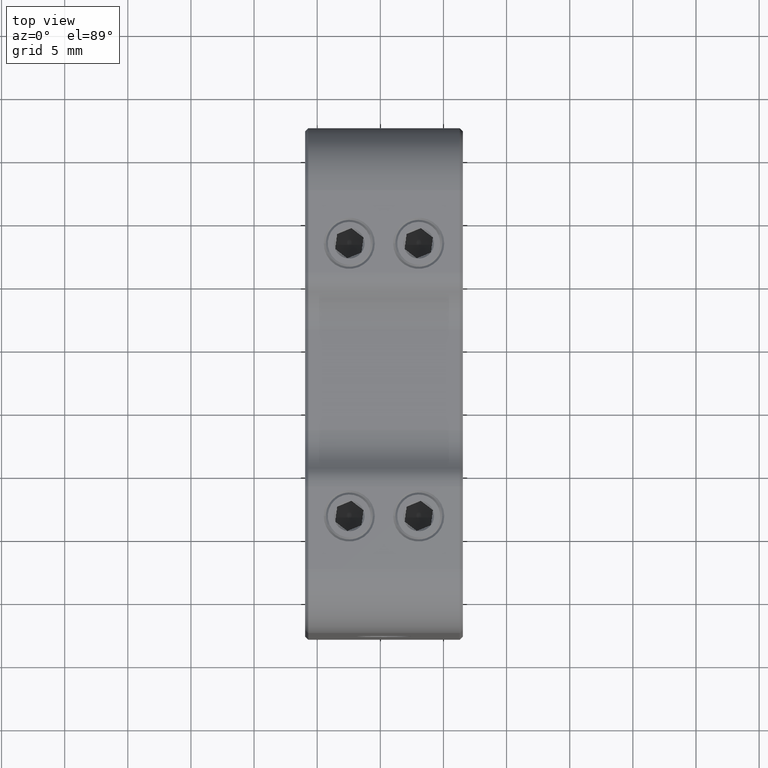
[diagram: clean part render]
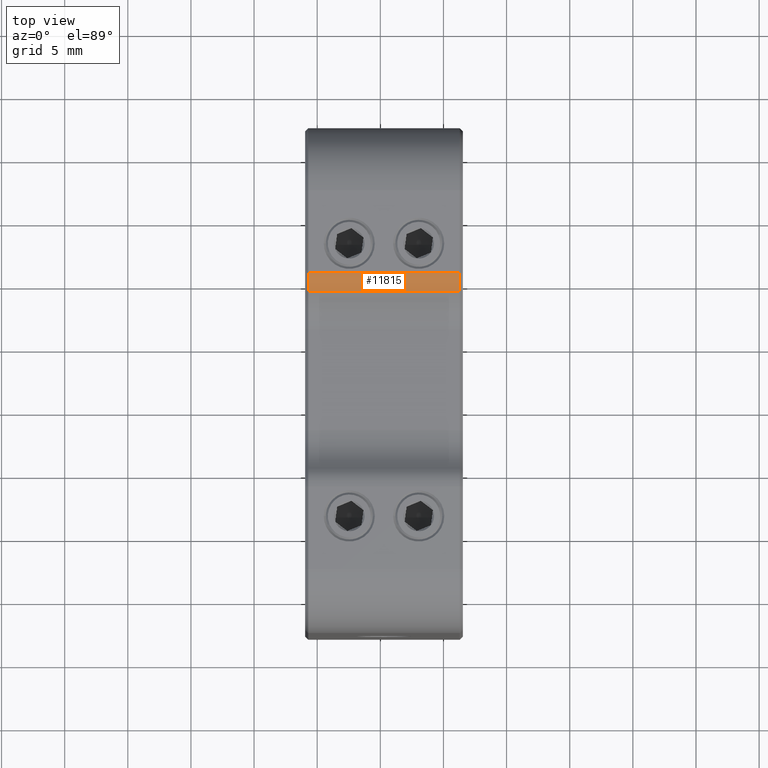
[diagram: same view with one face highlighted and labeled with its STEP entity id]
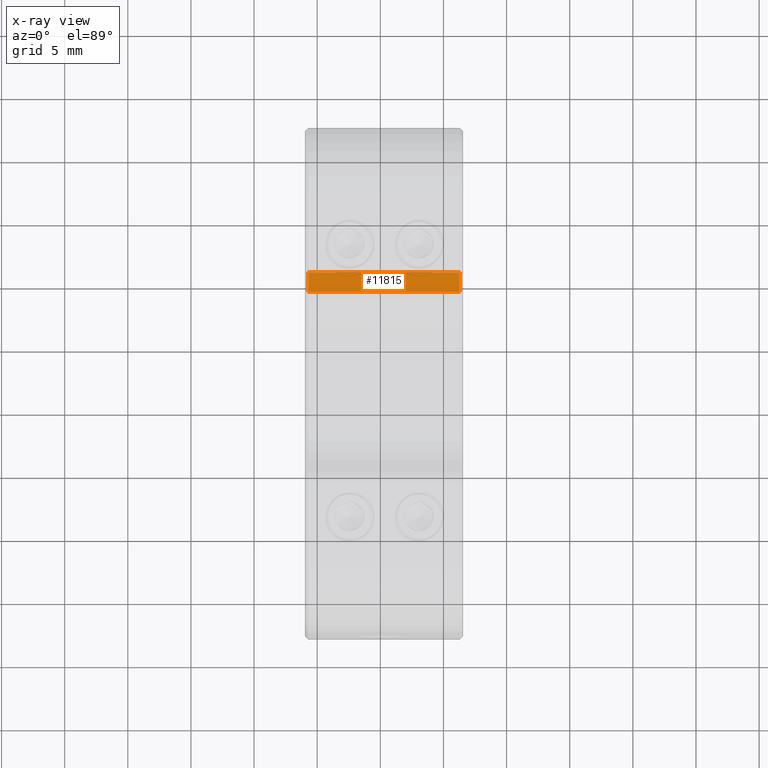
[diagram: x-ray of the same camera — body ghosted, the highlighted face saturated]
A machine part, top view. The second image highlights one B-rep face of the part: STEP entity #11815.
The next image is the same camera in x-ray: the body ghosted, the highlighted face saturated — about 0% of this face is hidden behind the body in this view.
In plain terms, the highlighted cylindrical surface (edge-blend (fillet) strip) has radius 2 mm, axis along (-1, -0, -0).
Its self-contained STEP definition (entity closure, byte-faithful):
#67 = DIRECTION ( 'NONE',  ( -1.000000000000000000, 0.000000000000000000, 0.000000000000000000 ) ) ;
#243 = LINE ( 'NONE', #2332, #923 ) ;
#392 = VERTEX_POINT ( 'NONE', #1491 ) ;
#923 = VECTOR ( 'NONE', #10019, 1000.000000000000000 ) ;
#1491 = CARTESIAN_POINT ( 'NONE',  ( -8.709600636929948791, 9.090725193408831117, 59.33333333333334281 ) ) ;
#1898 = EDGE_CURVE ( 'NONE', #392, #5350, #9022, .T. ) ;
#2234 = CARTESIAN_POINT ( 'NONE',  ( -20.70960063692994169, 9.090725193408831117, 59.33333333333334281 ) ) ;
#2332 = CARTESIAN_POINT ( 'NONE',  ( -8.459600636929948791, 10.58143717840869158, 60.00000000000001421 ) ) ;
#2344 = EDGE_CURVE ( 'NONE', #2387, #5350, #7703, .T. ) ;
#2387 = VERTEX_POINT ( 'NONE', #11500 ) ;
#2527 = DIRECTION ( 'NONE',  ( 0.000000000000000000, 0.000000000000000000, -1.000000000000000000 ) ) ;
#2571 = CARTESIAN_POINT ( 'NONE',  ( -20.70960063692994169, 10.58143717840869158, 58.00000000000000711 ) ) ;
#2818 = CARTESIAN_POINT ( 'NONE',  ( -8.709600636929948791, 10.58143717840869158, 58.00000000000000711 ) ) ;
#3755 = CARTESIAN_POINT ( 'NONE',  ( -8.459600636929948791, 10.58143717840869158, 58.00000000000000711 ) ) ;
#3860 = VECTOR ( 'NONE', #10918, 1000.000000000000000 ) ;
#4228 = CARTESIAN_POINT ( 'NONE',  ( -8.459600636929948791, 9.090725193408831117, 59.33333333333334281 ) ) ;
#4260 = FACE_OUTER_BOUND ( 'NONE', #11687, .T. ) ;
#4948 = EDGE_CURVE ( 'NONE', #2387, #10109, #243, .T. ) ;
#5267 = AXIS2_PLACEMENT_3D ( 'NONE', #3755, #6925, #10687 ) ;
#5350 = VERTEX_POINT ( 'NONE', #2234 ) ;
#5903 = CYLINDRICAL_SURFACE ( 'NONE', #5267, 2.000000000000001776 ) ;
#6886 = AXIS2_PLACEMENT_3D ( 'NONE', #2818, #67, #7733 ) ;
#6925 = DIRECTION ( 'NONE',  ( -1.000000000000000000, -0.000000000000000000, -0.000000000000000000 ) ) ;
#6941 = DIRECTION ( 'NONE',  ( 1.000000000000000000, 0.000000000000000000, 0.000000000000000000 ) ) ;
#7237 = CIRCLE ( 'NONE', #6886, 2.000000000000001776 ) ;
#7703 = CIRCLE ( 'NONE', #13466, 2.000000000000001776 ) ;
#7733 = DIRECTION ( 'NONE',  ( 0.000000000000000000, 0.000000000000000000, -1.000000000000000000 ) ) ;
#9022 = LINE ( 'NONE', #4228, #3860 ) ;
#9171 = ORIENTED_EDGE ( 'NONE', *, *, #2344, .T. ) ;
#9687 = EDGE_CURVE ( 'NONE', #392, #10109, #7237, .T. ) ;
#9692 = ORIENTED_EDGE ( 'NONE', *, *, #9687, .T. ) ;
#10019 = DIRECTION ( 'NONE',  ( 1.000000000000000000, -0.000000000000000000, -0.000000000000000000 ) ) ;
#10109 = VERTEX_POINT ( 'NONE', #12989 ) ;
#10687 = DIRECTION ( 'NONE',  ( 0.000000000000000000, 0.000000000000000000, 1.000000000000000000 ) ) ;
#10918 = DIRECTION ( 'NONE',  ( -1.000000000000000000, -0.000000000000000000, -0.000000000000000000 ) ) ;
#11500 = CARTESIAN_POINT ( 'NONE',  ( -20.70960063692994169, 10.58143717840869158, 60.00000000000001421 ) ) ;
#11687 = EDGE_LOOP ( 'NONE', ( #12403, #9171, #12186, #9692 ) ) ;
#11815 = ADVANCED_FACE ( 'NONE', ( #4260 ), #5903, .T. ) ;
#12186 = ORIENTED_EDGE ( 'NONE', *, *, #1898, .F. ) ;
#12403 = ORIENTED_EDGE ( 'NONE', *, *, #4948, .F. ) ;
#12989 = CARTESIAN_POINT ( 'NONE',  ( -8.709600636929948791, 10.58143717840869158, 60.00000000000001421 ) ) ;
#13466 = AXIS2_PLACEMENT_3D ( 'NONE', #2571, #6941, #2527 ) ;